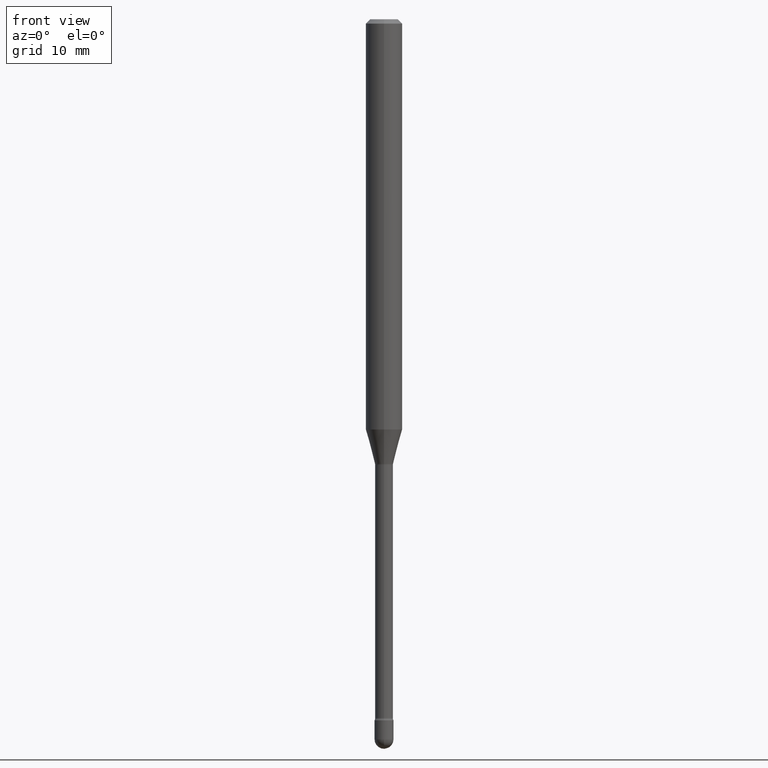
[diagram: clean part render]
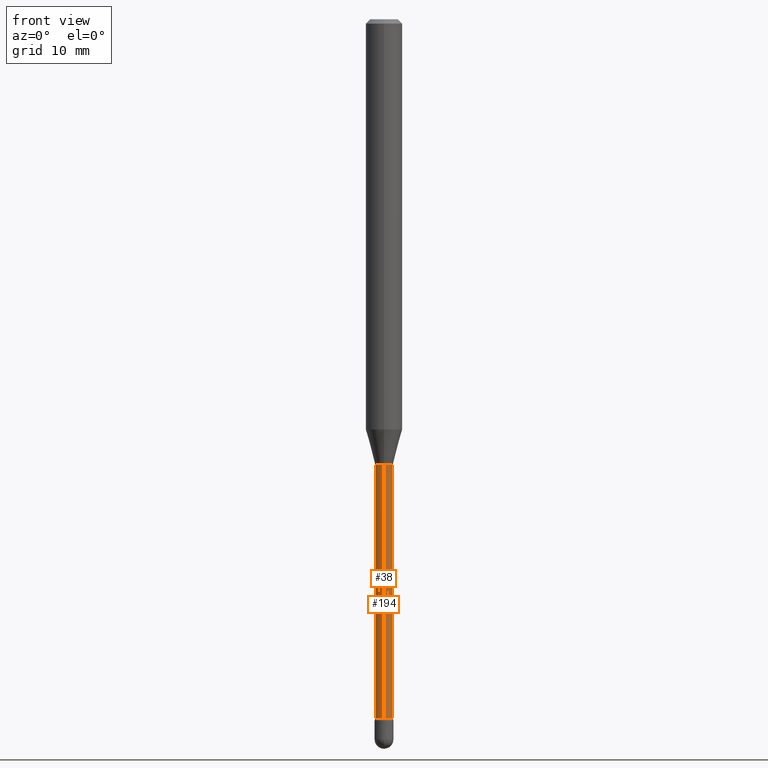
[diagram: same view with one multi-face feature highlighted, each face labeled with its STEP entity id]
A machine part, front view. The highlighted faces form ONE feature: a constant-radius fillet chain: 2 tangent blend faces with common blend radius 0.776 mm. The faces share edges in the B-rep.
Their STEP definitions:
[1] entity #194 (Cylinder):
#23 = CIRCLE ( 'NONE', #250, 0.03055000000000000077 ) ;
#28 = CARTESIAN_POINT ( 'NONE',  ( 2.239985974484304837E-16, 0.03054999999999169838, -2.394604224178627838 ) ) ;
#45 = DIRECTION ( 'NONE',  ( -6.982962677686265133E-15, -1.000000000000000000, 0.000000000000000000 ) ) ;
#56 = AXIS2_PLACEMENT_3D ( 'NONE', #388, #555, #424 ) ;
#65 = ORIENTED_EDGE ( 'NONE', *, *, #214, .F. ) ;
#89 = DIRECTION ( 'NONE',  ( -2.445462509514312655E-29, 3.491490356034149509E-15, 1.000000000000000000 ) ) ;
#94 = EDGE_CURVE ( 'NONE', #99, #182, #451, .T. ) ;
#99 = VERTEX_POINT ( 'NONE', #553 ) ;
#135 = VERTEX_POINT ( 'NONE', #218 ) ;
#151 = EDGE_CURVE ( 'NONE', #182, #299, #421, .T. ) ;
#156 = FACE_OUTER_BOUND ( 'NONE', #379, .T. ) ;
#177 = CARTESIAN_POINT ( 'NONE',  ( 2.170708057747107848E-16, 0.03055000000000002852, 3.714083685144026992E-16 ) ) ;
#182 = VERTEX_POINT ( 'NONE', #28 ) ;
#194 = ADVANCED_FACE ( 'NONE', ( #156 ), #205, .T. ) ;
#197 = CARTESIAN_POINT ( 'NONE',  ( 2.170708057747693824E-16, 0.03054999999999466823, -1.526974787463811323 ) ) ;
#205 = CYLINDRICAL_SURFACE ( 'NONE', #282, 0.03055000000000002852 ) ;
#214 = EDGE_CURVE ( 'NONE', #135, #299, #23, .T. ) ;
#218 = CARTESIAN_POINT ( 'NONE',  ( -2.133295098032780799E-16, -0.03055000000000532984, -1.526974787463811323 ) ) ;
#227 = CARTESIAN_POINT ( 'NONE',  ( -1.169113584055446105E-44, 1.669184350826100908E-30, 4.780733988912460139E-16 ) ) ;
#235 = EDGE_CURVE ( 'NONE', #99, #135, #269, .T. ) ;
#250 = AXIS2_PLACEMENT_3D ( 'NONE', #486, #89, #45 ) ;
#255 = ORIENTED_EDGE ( 'NONE', *, *, #235, .F. ) ;
#260 = DIRECTION ( 'NONE',  ( -2.445462509514312655E-29, 3.491490356034149509E-15, 1.000000000000000000 ) ) ;
#269 = LINE ( 'NONE', #472, #546 ) ;
#282 = AXIS2_PLACEMENT_3D ( 'NONE', #227, #398, #351 ) ;
#299 = VERTEX_POINT ( 'NONE', #197 ) ;
#325 = VECTOR ( 'NONE', #260, 39.37007874015748143 ) ;
#331 = ORIENTED_EDGE ( 'NONE', *, *, #94, .T. ) ;
#351 = DIRECTION ( 'NONE',  ( -6.982962677686265922E-15, -1.000000000000000000, 3.491490356034149115E-15 ) ) ;
#379 = EDGE_LOOP ( 'NONE', ( #331, #380, #65, #255 ) ) ;
#380 = ORIENTED_EDGE ( 'NONE', *, *, #151, .T. ) ;
#388 = CARTESIAN_POINT ( 'NONE',  ( 5.855914855353441094E-29, -8.360737555238315567E-15, -2.394604224178627838 ) ) ;
#398 = DIRECTION ( 'NONE',  ( -2.445462509514312655E-29, 3.491490356034149509E-15, 1.000000000000000000 ) ) ;
#421 = LINE ( 'NONE', #177, #325 ) ;
#424 = DIRECTION ( 'NONE',  ( -6.982962677686265922E-15, -1.000000000000000000, 0.000000000000000000 ) ) ;
#451 = CIRCLE ( 'NONE', #56, 0.03055000000000005975 ) ;
#472 = CARTESIAN_POINT ( 'NONE',  ( -2.133295098033156247E-16, -0.03055000000000002852, 5.847384292680894272E-16 ) ) ;
#486 = CARTESIAN_POINT ( 'NONE',  ( 3.734159595716336205E-29, -5.331417744337191746E-15, -1.526974787463811323 ) ) ;
#543 = DIRECTION ( 'NONE',  ( -2.445462509514312655E-29, 3.491490356034149509E-15, 1.000000000000000000 ) ) ;
#546 = VECTOR ( 'NONE', #543, 39.37007874015748143 ) ;
#553 = CARTESIAN_POINT ( 'NONE',  ( -2.133295098032572737E-16, -0.03055000000000842111, -2.394604224178627838 ) ) ;
#555 = DIRECTION ( 'NONE',  ( -2.445462509514312655E-29, 3.491490356034149509E-15, 1.000000000000000000 ) ) ;
[2] entity #38 (Cylinder):
#11 = CIRCLE ( 'NONE', #176, 0.03055000000000000077 ) ;
#21 = DIRECTION ( 'NONE',  ( -6.982962677686265922E-15, -1.000000000000000000, 3.491490356034149115E-15 ) ) ;
#28 = CARTESIAN_POINT ( 'NONE',  ( 2.239985974484304837E-16, 0.03054999999999169838, -2.394604224178627838 ) ) ;
#38 = ADVANCED_FACE ( 'NONE', ( #333 ), #367, .T. ) ;
#57 = CIRCLE ( 'NONE', #265, 0.03055000000000005975 ) ;
#78 = DIRECTION ( 'NONE',  ( -2.445462509514312655E-29, 3.491490356034149509E-15, 1.000000000000000000 ) ) ;
#99 = VERTEX_POINT ( 'NONE', #553 ) ;
#108 = DIRECTION ( 'NONE',  ( -6.982962677686265133E-15, -1.000000000000000000, 0.000000000000000000 ) ) ;
#110 = ORIENTED_EDGE ( 'NONE', *, *, #475, .F. ) ;
#112 = ORIENTED_EDGE ( 'NONE', *, *, #394, .T. ) ;
#135 = VERTEX_POINT ( 'NONE', #218 ) ;
#151 = EDGE_CURVE ( 'NONE', #182, #299, #421, .T. ) ;
#176 = AXIS2_PLACEMENT_3D ( 'NONE', #238, #406, #108 ) ;
#177 = CARTESIAN_POINT ( 'NONE',  ( 2.170708057747107848E-16, 0.03055000000000002852, 3.714083685144026992E-16 ) ) ;
#182 = VERTEX_POINT ( 'NONE', #28 ) ;
#197 = CARTESIAN_POINT ( 'NONE',  ( 2.170708057747693824E-16, 0.03054999999999466823, -1.526974787463811323 ) ) ;
#207 = ORIENTED_EDGE ( 'NONE', *, *, #235, .T. ) ;
#218 = CARTESIAN_POINT ( 'NONE',  ( -2.133295098032780799E-16, -0.03055000000000532984, -1.526974787463811323 ) ) ;
#235 = EDGE_CURVE ( 'NONE', #99, #135, #269, .T. ) ;
#238 = CARTESIAN_POINT ( 'NONE',  ( 3.734159595716336205E-29, -5.331417744337191746E-15, -1.526974787463811323 ) ) ;
#246 = DIRECTION ( 'NONE',  ( -2.445462509514312655E-29, 3.491490356034149509E-15, 1.000000000000000000 ) ) ;
#260 = DIRECTION ( 'NONE',  ( -2.445462509514312655E-29, 3.491490356034149509E-15, 1.000000000000000000 ) ) ;
#261 = EDGE_LOOP ( 'NONE', ( #427, #112, #207, #110 ) ) ;
#265 = AXIS2_PLACEMENT_3D ( 'NONE', #297, #78, #389 ) ;
#269 = LINE ( 'NONE', #472, #546 ) ;
#293 = AXIS2_PLACEMENT_3D ( 'NONE', #506, #246, #21 ) ;
#297 = CARTESIAN_POINT ( 'NONE',  ( 5.855914855353441094E-29, -8.360737555238315567E-15, -2.394604224178627838 ) ) ;
#299 = VERTEX_POINT ( 'NONE', #197 ) ;
#325 = VECTOR ( 'NONE', #260, 39.37007874015748143 ) ;
#333 = FACE_OUTER_BOUND ( 'NONE', #261, .T. ) ;
#367 = CYLINDRICAL_SURFACE ( 'NONE', #293, 0.03055000000000002852 ) ;
#389 = DIRECTION ( 'NONE',  ( -6.982962677686265922E-15, -1.000000000000000000, 0.000000000000000000 ) ) ;
#394 = EDGE_CURVE ( 'NONE', #182, #99, #57, .T. ) ;
#406 = DIRECTION ( 'NONE',  ( -2.445462509514312655E-29, 3.491490356034149509E-15, 1.000000000000000000 ) ) ;
#421 = LINE ( 'NONE', #177, #325 ) ;
#427 = ORIENTED_EDGE ( 'NONE', *, *, #151, .F. ) ;
#472 = CARTESIAN_POINT ( 'NONE',  ( -2.133295098033156247E-16, -0.03055000000000002852, 5.847384292680894272E-16 ) ) ;
#475 = EDGE_CURVE ( 'NONE', #299, #135, #11, .T. ) ;
#506 = CARTESIAN_POINT ( 'NONE',  ( -1.169113584055446105E-44, 1.669184350826100908E-30, 4.780733988912460139E-16 ) ) ;
#543 = DIRECTION ( 'NONE',  ( -2.445462509514312655E-29, 3.491490356034149509E-15, 1.000000000000000000 ) ) ;
#546 = VECTOR ( 'NONE', #543, 39.37007874015748143 ) ;
#553 = CARTESIAN_POINT ( 'NONE',  ( -2.133295098032572737E-16, -0.03055000000000842111, -2.394604224178627838 ) ) ;